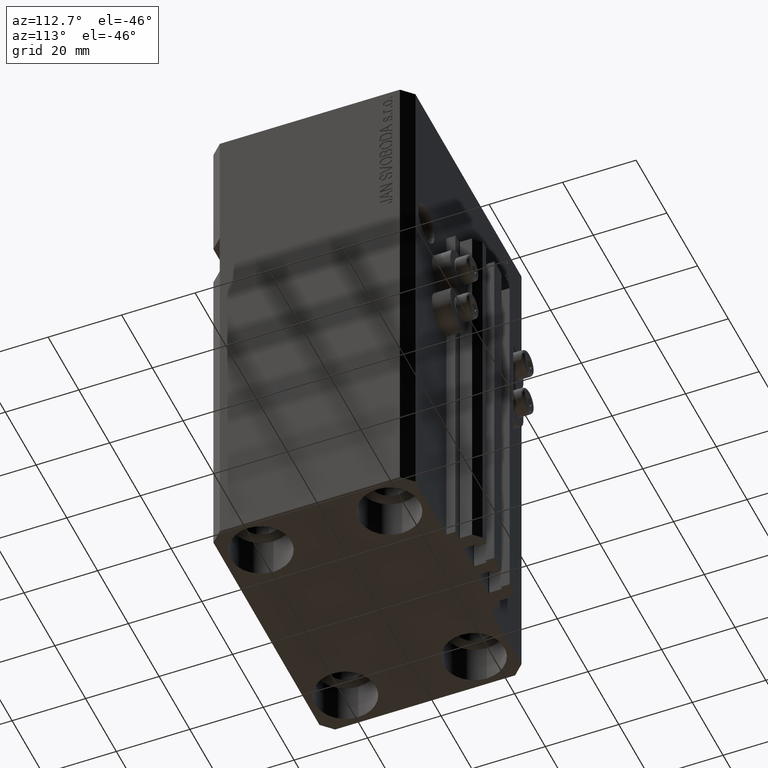
[diagram: clean part render]
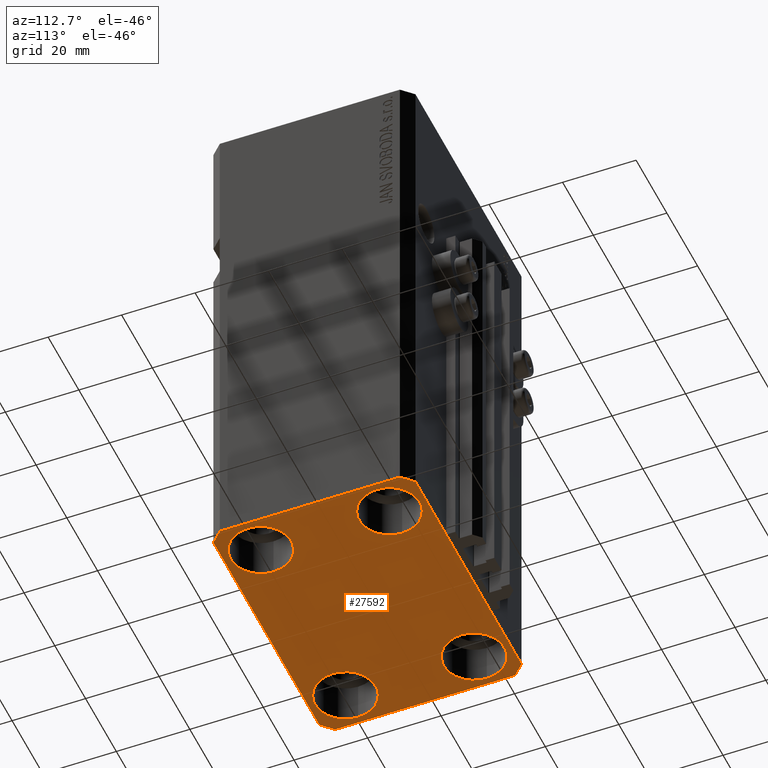
[diagram: same view with one face highlighted and labeled with its STEP entity id]
A machine part, auxiliary view. The second image highlights one B-rep face of the part: STEP entity #27592.
In plain terms, the highlighted planar face has unit normal (0, 0, 1).
Its self-contained STEP definition (entity closure, byte-faithful):
#239 = CARTESIAN_POINT ( 'NONE',  ( 34.50000000000056843, 27.50000000000000000, -140.0000000000000000 ) ) ;
#903 = VERTEX_POINT ( 'NONE', #20142 ) ;
#1133 = VERTEX_POINT ( 'NONE', #28116 ) ;
#1605 = VERTEX_POINT ( 'NONE', #26381 ) ;
#1770 = CARTESIAN_POINT ( 'NONE',  ( -35.75000000000000711, 17.50000000000000000, -140.0000000000000000 ) ) ;
#2101 = AXIS2_PLACEMENT_3D ( 'NONE', #29764, #5392, #33802 ) ;
#2379 = ORIENTED_EDGE ( 'NONE', *, *, #46000, .T. ) ;
#2478 = CARTESIAN_POINT ( 'NONE',  ( 27.49999999999999645, 17.50000000000001066, -140.0000000000000000 ) ) ;
#2653 = CIRCLE ( 'NONE', #15511, 8.250000000000000000 ) ;
#2834 = ORIENTED_EDGE ( 'NONE', *, *, #14280, .T. ) ;
#2842 = AXIS2_PLACEMENT_3D ( 'NONE', #45092, #4395, #41300 ) ;
#3686 = EDGE_CURVE ( 'NONE', #30895, #11825, #9511, .T. ) ;
#3716 = DIRECTION ( 'NONE',  ( 0.7071067811865474617, 0.7071067811865474617, 0.000000000000000000 ) ) ;
#4064 = EDGE_CURVE ( 'NONE', #5940, #4533, #25344, .T. ) ;
#4143 = AXIS2_PLACEMENT_3D ( 'NONE', #2478, #9820, #42711 ) ;
#4395 = DIRECTION ( 'NONE',  ( -0.000000000000000000, -0.000000000000000000, 1.000000000000000000 ) ) ;
#4462 = CARTESIAN_POINT ( 'NONE',  ( 37.50000000000051870, 24.49999999999995381, -140.0000000000000000 ) ) ;
#4533 = VERTEX_POINT ( 'NONE', #37804 ) ;
#4692 = VECTOR ( 'NONE', #17124, 1000.000000000000114 ) ;
#5357 = CARTESIAN_POINT ( 'NONE',  ( 0.000000000000000000, 0.000000000000000000, -140.0000000000000000 ) ) ;
#5392 = DIRECTION ( 'NONE',  ( -0.000000000000000000, -0.000000000000000000, 1.000000000000000000 ) ) ;
#5576 = VERTEX_POINT ( 'NONE', #16752 ) ;
#5607 = VECTOR ( 'NONE', #37036, 1000.000000000000000 ) ;
#5772 = ORIENTED_EDGE ( 'NONE', *, *, #16908, .F. ) ;
#5940 = VERTEX_POINT ( 'NONE', #6039 ) ;
#6039 = CARTESIAN_POINT ( 'NONE',  ( 34.50000000000056843, 27.50000000000000000, -140.0000000000000000 ) ) ;
#6303 = CARTESIAN_POINT ( 'NONE',  ( -37.49999999999999289, -24.50000000000000000, -140.0000000000000000 ) ) ;
#6375 = AXIS2_PLACEMENT_3D ( 'NONE', #10913, #46193, #46423 ) ;
#6633 = CIRCLE ( 'NONE', #2101, 8.249999999999992895 ) ;
#6763 = VERTEX_POINT ( 'NONE', #41232 ) ;
#7150 = CARTESIAN_POINT ( 'NONE',  ( 35.75000000000000711, -17.50000000000000000, -140.0000000000000000 ) ) ;
#8435 = FACE_BOUND ( 'NONE', #23844, .T. ) ;
#8664 = VERTEX_POINT ( 'NONE', #26257 ) ;
#8903 = EDGE_LOOP ( 'NONE', ( #19772, #5772, #41770, #18844, #43872, #44649, #43578, #44644 ) ) ;
#9511 = LINE ( 'NONE', #37907, #24538 ) ;
#9778 = CARTESIAN_POINT ( 'NONE',  ( 37.50000000000051870, 24.49999999999995381, -140.0000000000000000 ) ) ;
#9820 = DIRECTION ( 'NONE',  ( -0.000000000000000000, -0.000000000000000000, 1.000000000000000000 ) ) ;
#10913 = CARTESIAN_POINT ( 'NONE',  ( -27.50000000000000355, -17.50000000000000000, -140.0000000000000000 ) ) ;
#11262 = DIRECTION ( 'NONE',  ( 1.000000000000000000, 0.000000000000000000, 0.000000000000000000 ) ) ;
#11449 = CARTESIAN_POINT ( 'NONE',  ( 27.50000000000000355, -17.50000000000000000, -140.0000000000000000 ) ) ;
#11825 = VERTEX_POINT ( 'NONE', #22150 ) ;
#11934 = EDGE_CURVE ( 'NONE', #21082, #30895, #12911, .T. ) ;
#11998 = FACE_BOUND ( 'NONE', #19280, .T. ) ;
#12509 = AXIS2_PLACEMENT_3D ( 'NONE', #5357, #27110, #34228 ) ;
#12614 = DIRECTION ( 'NONE',  ( 1.000000000000000000, 0.000000000000000000, 0.000000000000000000 ) ) ;
#12911 = LINE ( 'NONE', #31341, #45119 ) ;
#13737 = VERTEX_POINT ( 'NONE', #19659 ) ;
#14280 = EDGE_CURVE ( 'NONE', #13737, #903, #35353, .T. ) ;
#15511 = AXIS2_PLACEMENT_3D ( 'NONE', #11449, #26813, #26100 ) ;
#15714 = VECTOR ( 'NONE', #38293, 1000.000000000000000 ) ;
#15978 = EDGE_CURVE ( 'NONE', #11825, #36694, #36137, .T. ) ;
#16752 = CARTESIAN_POINT ( 'NONE',  ( -37.49999999999999289, 24.50000000000000000, -140.0000000000000000 ) ) ;
#16908 = EDGE_CURVE ( 'NONE', #36398, #5940, #23750, .T. ) ;
#17124 = DIRECTION ( 'NONE',  ( -0.7071067811865356934, 0.7071067811865594521, 0.000000000000000000 ) ) ;
#17472 = CARTESIAN_POINT ( 'NONE',  ( -27.50000000000000355, 17.50000000000000000, -140.0000000000000000 ) ) ;
#17890 = DIRECTION ( 'NONE',  ( -0.000000000000000000, -0.000000000000000000, 1.000000000000000000 ) ) ;
#18578 = DIRECTION ( 'NONE',  ( 1.000000000000000000, 0.000000000000000000, 0.000000000000000000 ) ) ;
#18844 = ORIENTED_EDGE ( 'NONE', *, *, #15978, .F. ) ;
#19280 = EDGE_LOOP ( 'NONE', ( #2379, #33872 ) ) ;
#19607 = ORIENTED_EDGE ( 'NONE', *, *, #43821, .T. ) ;
#19659 = CARTESIAN_POINT ( 'NONE',  ( -35.75000000000000711, -17.50000000000000000, -140.0000000000000000 ) ) ;
#19772 = ORIENTED_EDGE ( 'NONE', *, *, #4064, .F. ) ;
#20142 = CARTESIAN_POINT ( 'NONE',  ( -19.25000000000000355, -17.50000000000000000, -140.0000000000000000 ) ) ;
#21082 = VERTEX_POINT ( 'NONE', #6303 ) ;
#21298 = VERTEX_POINT ( 'NONE', #1770 ) ;
#22150 = CARTESIAN_POINT ( 'NONE',  ( 34.49999999999999289, -27.49999999999999645, -140.0000000000000000 ) ) ;
#22321 = CIRCLE ( 'NONE', #32152, 8.250000000000000000 ) ;
#22866 = PLANE ( 'NONE',  #12509 ) ;
#23635 = LINE ( 'NONE', #23871, #15714 ) ;
#23750 = LINE ( 'NONE', #9778, #4692 ) ;
#23844 = EDGE_LOOP ( 'NONE', ( #32414, #26536 ) ) ;
#23871 = CARTESIAN_POINT ( 'NONE',  ( 37.49999999999999289, -24.50000000000000000, -140.0000000000000000 ) ) ;
#24144 = EDGE_CURVE ( 'NONE', #5576, #21082, #42730, .T. ) ;
#24538 = VECTOR ( 'NONE', #12614, 1000.000000000000000 ) ;
#24578 = VECTOR ( 'NONE', #28885, 1000.000000000000000 ) ;
#24692 = AXIS2_PLACEMENT_3D ( 'NONE', #17472, #36780, #18578 ) ;
#25344 = LINE ( 'NONE', #239, #24578 ) ;
#25905 = EDGE_CURVE ( 'NONE', #4533, #5576, #32564, .T. ) ;
#26100 = DIRECTION ( 'NONE',  ( 1.000000000000000000, 0.000000000000000000, 0.000000000000000000 ) ) ;
#26126 = EDGE_CURVE ( 'NONE', #903, #13737, #26784, .T. ) ;
#26151 = CARTESIAN_POINT ( 'NONE',  ( -34.49999999999999289, 27.50000000000000000, -140.0000000000000000 ) ) ;
#26173 = FACE_BOUND ( 'NONE', #40842, .T. ) ;
#26257 = CARTESIAN_POINT ( 'NONE',  ( 19.25000000000000000, -17.50000000000000000, -140.0000000000000000 ) ) ;
#26381 = CARTESIAN_POINT ( 'NONE',  ( 35.74999999999999289, 17.50000000000001066, -140.0000000000000000 ) ) ;
#26536 = ORIENTED_EDGE ( 'NONE', *, *, #30681, .T. ) ;
#26784 = CIRCLE ( 'NONE', #6375, 8.250000000000000000 ) ;
#26813 = DIRECTION ( 'NONE',  ( -0.000000000000000000, -0.000000000000000000, 1.000000000000000000 ) ) ;
#27110 = DIRECTION ( 'NONE',  ( 0.000000000000000000, 0.000000000000000000, 1.000000000000000000 ) ) ;
#27143 = EDGE_CURVE ( 'NONE', #28069, #8664, #2653, .T. ) ;
#27592 = ADVANCED_FACE ( 'NONE', ( #26173, #11998, #40848, #8435, #37767 ), #22866, .F. ) ;
#27670 = EDGE_CURVE ( 'NONE', #1133, #1605, #29104, .T. ) ;
#27872 = DIRECTION ( 'NONE',  ( -0.000000000000000000, -0.000000000000000000, 1.000000000000000000 ) ) ;
#28069 = VERTEX_POINT ( 'NONE', #7150 ) ;
#28116 = CARTESIAN_POINT ( 'NONE',  ( 19.25000000000000000, 17.50000000000001066, -140.0000000000000000 ) ) ;
#28528 = EDGE_CURVE ( 'NONE', #21298, #6763, #22321, .T. ) ;
#28885 = DIRECTION ( 'NONE',  ( -1.000000000000000000, 0.000000000000000000, 0.000000000000000000 ) ) ;
#29104 = CIRCLE ( 'NONE', #4143, 8.249999999999992895 ) ;
#29764 = CARTESIAN_POINT ( 'NONE',  ( 27.49999999999999645, 17.50000000000001066, -140.0000000000000000 ) ) ;
#30681 = EDGE_CURVE ( 'NONE', #6763, #21298, #36773, .T. ) ;
#30895 = VERTEX_POINT ( 'NONE', #46460 ) ;
#31341 = CARTESIAN_POINT ( 'NONE',  ( -37.49999999999999289, -24.50000000000000000, -140.0000000000000000 ) ) ;
#31850 = CARTESIAN_POINT ( 'NONE',  ( -37.49999999999999289, 24.50000000000000000, -140.0000000000000000 ) ) ;
#32152 = AXIS2_PLACEMENT_3D ( 'NONE', #41614, #27872, #42312 ) ;
#32414 = ORIENTED_EDGE ( 'NONE', *, *, #28528, .T. ) ;
#32564 = LINE ( 'NONE', #26151, #5607 ) ;
#33372 = VECTOR ( 'NONE', #3716, 1000.000000000000114 ) ;
#33802 = DIRECTION ( 'NONE',  ( 1.000000000000000000, 0.000000000000000000, 0.000000000000000000 ) ) ;
#33872 = ORIENTED_EDGE ( 'NONE', *, *, #27143, .T. ) ;
#34152 = EDGE_CURVE ( 'NONE', #36694, #36398, #23635, .T. ) ;
#34228 = DIRECTION ( 'NONE',  ( 1.000000000000000000, 0.000000000000000000, -0.000000000000000000 ) ) ;
#34650 = EDGE_LOOP ( 'NONE', ( #36870, #19607 ) ) ;
#34750 = CARTESIAN_POINT ( 'NONE',  ( 37.49999999999999289, -24.50000000000000000, -140.0000000000000000 ) ) ;
#35353 = CIRCLE ( 'NONE', #2842, 8.250000000000000000 ) ;
#36137 = LINE ( 'NONE', #39441, #33372 ) ;
#36398 = VERTEX_POINT ( 'NONE', #4462 ) ;
#36694 = VERTEX_POINT ( 'NONE', #34750 ) ;
#36773 = CIRCLE ( 'NONE', #24692, 8.250000000000000000 ) ;
#36780 = DIRECTION ( 'NONE',  ( -0.000000000000000000, -0.000000000000000000, 1.000000000000000000 ) ) ;
#36870 = ORIENTED_EDGE ( 'NONE', *, *, #27670, .T. ) ;
#37036 = DIRECTION ( 'NONE',  ( -0.7071067811865471286, -0.7071067811865479058, 0.000000000000000000 ) ) ;
#37767 = FACE_OUTER_BOUND ( 'NONE', #8903, .T. ) ;
#37804 = CARTESIAN_POINT ( 'NONE',  ( -34.49999999999999289, 27.50000000000000000, -140.0000000000000000 ) ) ;
#37907 = CARTESIAN_POINT ( 'NONE',  ( -34.49999999999998579, -27.49999999999999645, -140.0000000000000000 ) ) ;
#38293 = DIRECTION ( 'NONE',  ( 1.076236605503979380E-14, 1.000000000000000000, 0.000000000000000000 ) ) ;
#38439 = DIRECTION ( 'NONE',  ( 0.7071067811865483499, -0.7071067811865466846, 0.000000000000000000 ) ) ;
#38805 = VECTOR ( 'NONE', #39876, 1000.000000000000000 ) ;
#39371 = ORIENTED_EDGE ( 'NONE', *, *, #26126, .T. ) ;
#39441 = CARTESIAN_POINT ( 'NONE',  ( 34.49999999999999289, -27.49999999999999645, -140.0000000000000000 ) ) ;
#39876 = DIRECTION ( 'NONE',  ( 0.000000000000000000, -1.000000000000000000, 0.000000000000000000 ) ) ;
#40701 = CIRCLE ( 'NONE', #46022, 8.250000000000000000 ) ;
#40842 = EDGE_LOOP ( 'NONE', ( #2834, #39371 ) ) ;
#40848 = FACE_BOUND ( 'NONE', #34650, .T. ) ;
#41232 = CARTESIAN_POINT ( 'NONE',  ( -19.25000000000000355, 17.50000000000000000, -140.0000000000000000 ) ) ;
#41300 = DIRECTION ( 'NONE',  ( 1.000000000000000000, 0.000000000000000000, 0.000000000000000000 ) ) ;
#41614 = CARTESIAN_POINT ( 'NONE',  ( -27.50000000000000355, 17.50000000000000000, -140.0000000000000000 ) ) ;
#41770 = ORIENTED_EDGE ( 'NONE', *, *, #34152, .F. ) ;
#42312 = DIRECTION ( 'NONE',  ( 1.000000000000000000, 0.000000000000000000, 0.000000000000000000 ) ) ;
#42711 = DIRECTION ( 'NONE',  ( 1.000000000000000000, 0.000000000000000000, 0.000000000000000000 ) ) ;
#42730 = LINE ( 'NONE', #31850, #38805 ) ;
#43578 = ORIENTED_EDGE ( 'NONE', *, *, #24144, .F. ) ;
#43674 = CARTESIAN_POINT ( 'NONE',  ( 27.50000000000000355, -17.50000000000000000, -140.0000000000000000 ) ) ;
#43821 = EDGE_CURVE ( 'NONE', #1605, #1133, #6633, .T. ) ;
#43872 = ORIENTED_EDGE ( 'NONE', *, *, #3686, .F. ) ;
#44644 = ORIENTED_EDGE ( 'NONE', *, *, #25905, .F. ) ;
#44649 = ORIENTED_EDGE ( 'NONE', *, *, #11934, .F. ) ;
#45092 = CARTESIAN_POINT ( 'NONE',  ( -27.50000000000000355, -17.50000000000000000, -140.0000000000000000 ) ) ;
#45119 = VECTOR ( 'NONE', #38439, 1000.000000000000000 ) ;
#46000 = EDGE_CURVE ( 'NONE', #8664, #28069, #40701, .T. ) ;
#46022 = AXIS2_PLACEMENT_3D ( 'NONE', #43674, #17890, #11262 ) ;
#46193 = DIRECTION ( 'NONE',  ( -0.000000000000000000, -0.000000000000000000, 1.000000000000000000 ) ) ;
#46423 = DIRECTION ( 'NONE',  ( 1.000000000000000000, 0.000000000000000000, 0.000000000000000000 ) ) ;
#46460 = CARTESIAN_POINT ( 'NONE',  ( -34.49999999999998579, -27.49999999999999645, -140.0000000000000000 ) ) ;